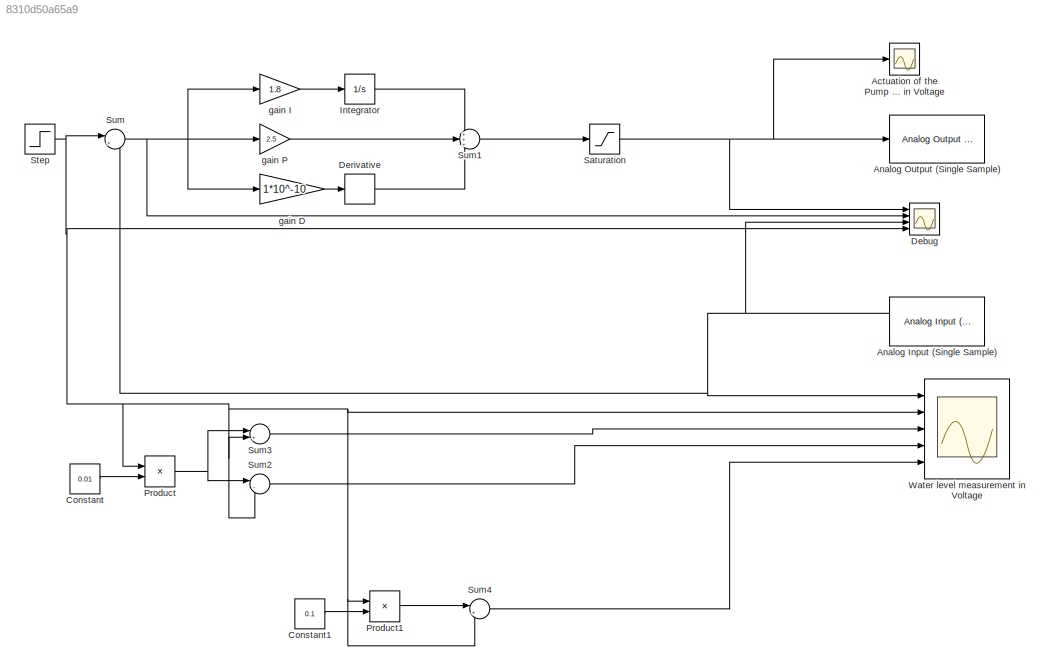
MODEL slx_8310d50a65a9
KIND model
CONFIG AbsTol = auto
CONFIG EnableMultiTasking = off
CONFIG FixedStep = auto
CONFIG MaxStep = auto
CONFIG MinStep = auto
CONFIG RelTol = 1e-3
CONFIG SampleTimeConstraint = Unconstrained
CONFIG SolverName = VariableStepAuto
CONFIG StartTime = 0.0
CONFIG StopTime = inf
WORKSPACE source: mxarray member
WORKSPACE Amoutuntilstep = 30
WORKSPACE stepvoltage = 1
BLOCK [Scope] Actuation of the Pump Motor in Voltage
  Floating = off
  NumInputPorts = 1
  Ports = [1]
  ScopeSpecificationString = Simulink.scopes.TimeScopeBlockCfg('CurrentConfiguration', extmgr.ConfigurationSet(extmgr.Configuration('Core','General UI',true),extmgr.Configuration('Core','Source UI',true),extmgr.Configuration('Sources','WiredSimulink',true),extmgr.Configuration('Visuals','Time Domain',true,'SerializedDisplays',{struct('MinYLimReal','-8.35903','MaxYLimReal','12.03989','YLabelReal','','MinYLimMag','0.00000','Max...<+1424ch>
BLOCK [Reference] Analog Input (Single Sample)  REF=daqlib/Analog Input
(Single Sample)
  Ports = [0, 2]
  SourceBlock = daqlib/Analog Input\n(Single Sample)
  SourceProductBaseCode = DA
  SourceType = Analog Input (Single Sample)
BLOCK [Reference] Analog Output (Single Sample)  REF=daqlib/Analog Output
(Single Sample)
  Ports = [1]
  SourceBlock = daqlib/Analog Output\n(Single Sample)
  SourceProductBaseCode = DA
  SourceType = Analog Output (Single Sample)
BLOCK [Constant] Constant
  Value = 0.01
BLOCK [Constant] Constant1
  Value = 0.1
BLOCK [Scope] Debug
  Floating = off
  NumInputPorts = 4
  Ports = [4]
  ScopeSpecificationString = Simulink.scopes.TimeScopeBlockCfg('CurrentConfiguration', extmgr.ConfigurationSet(extmgr.Configuration('Core','General UI',true),extmgr.Configuration('Core','Source UI',true),extmgr.Configuration('Sources','WiredSimulink',true,'DataLoggingVariableName','ScopeData1'),extmgr.Configuration('Visuals','Time Domain',true,'SerializedDisplays',{struct('MinYLimReal','0.59349','MaxYLimReal','9.20302','YLabe...<+1525ch>
BLOCK [Derivative] Derivative
BLOCK [Integrator] Integrator
  Ports = [1, 1]
BLOCK [Product] Product
  Ports = [2, 1]
BLOCK [Product] Product1
  Ports = [2, 1]
BLOCK [Saturate] Saturation
  LowerLimit = 0
  UpperLimit = 10
BLOCK [Step] Step
  After = 6
  SampleTime = 0
  Time = 3
BLOCK [Sum] Sum
  Inputs = |+-
  Ports = [2, 1]
BLOCK [Sum] Sum1
  Inputs = +++
  Ports = [3, 1]
BLOCK [Sum] Sum2
  Inputs = |-+
  Ports = [2, 1]
BLOCK [Sum] Sum3
  Inputs = |++
  Ports = [2, 1]
BLOCK [Sum] Sum4
  Inputs = |++
  Ports = [2, 1]
BLOCK [Scope] Water level measurement in Voltage
  Floating = off
  NumInputPorts = 5
  Ports = [5]
  ScopeSpecificationString = Simulink.scopes.TimeScopeBlockCfg('CurrentConfiguration', extmgr.ConfigurationSet(extmgr.Configuration('Core','General UI',true),extmgr.Configuration('Core','Source UI',true),extmgr.Configuration('Sources','WiredSimulink',true,'DataLoggingVariableName','ScopeData1','DataLogging',true,'DataLoggingSaveFormat','StructureWithTime'),extmgr.Configuration('Visuals','Time Domain',true,'SerializedDisplays'...<+1924ch>
BLOCK [Gain] gain D
  Gain = 1*10^-10
BLOCK [Gain] gain I
  Gain = 1.8
BLOCK [Gain] gain P
  Gain = 2.5
NET Analog Input (Single Sample):1 -> Debug:3, Sum:2, Water level measurement in Voltage:1
LINE Constant1:1 -> Product1:2
LINE Constant:1 -> Product:2
LINE Derivative:1 -> Sum1:3
LINE Integrator:1 -> Sum1:1
LINE Product1:1 -> Sum4:1
NET Product:1 -> Sum2:1, Sum3:1
NET Saturation:1 -> Actuation of the Pump Motor in Voltage:1, Analog Output (Single Sample):1, Debug:1
NET Step:1 -> Debug:4, Product1:1, Product:1, Sum2:2, Sum3:2, Sum4:2, Sum:1, Water level measurement in Voltage:2
LINE Sum1:1 -> Saturation:1
LINE Sum2:1 -> Water level measurement in Voltage:4
LINE Sum3:1 -> Water level measurement in Voltage:3
LINE Sum4:1 -> Water level measurement in Voltage:5
NET Sum:1 -> Debug:2, gain D:1, gain I:1, gain P:1
LINE gain D:1 -> Derivative:1
LINE gain I:1 -> Integrator:1
LINE gain P:1 -> Sum1:2
note: NET lines group one-source signal fan-out (src -> all destinations, sorted); 1:1 wires keep LINE
